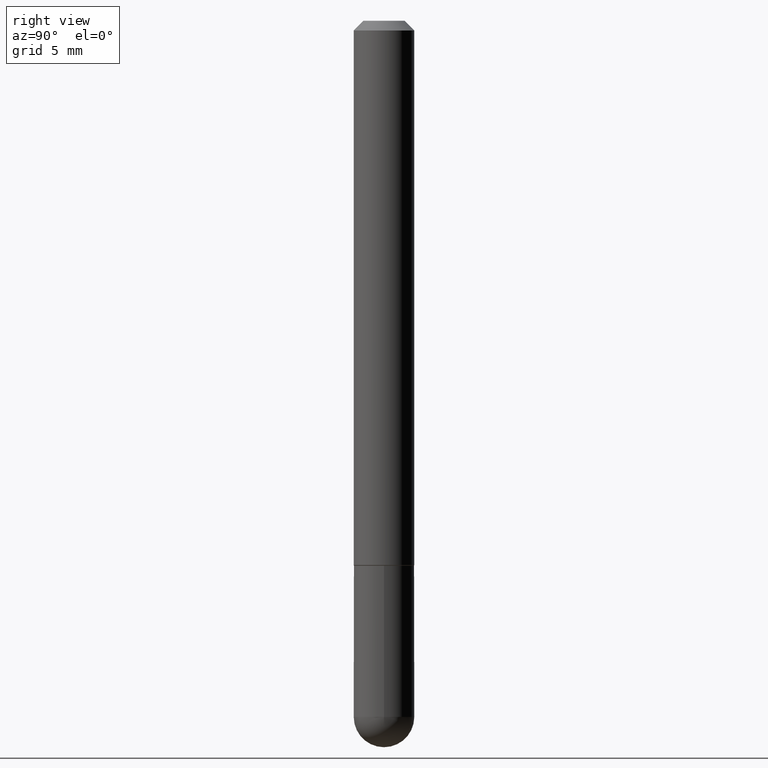
[diagram: clean part render]
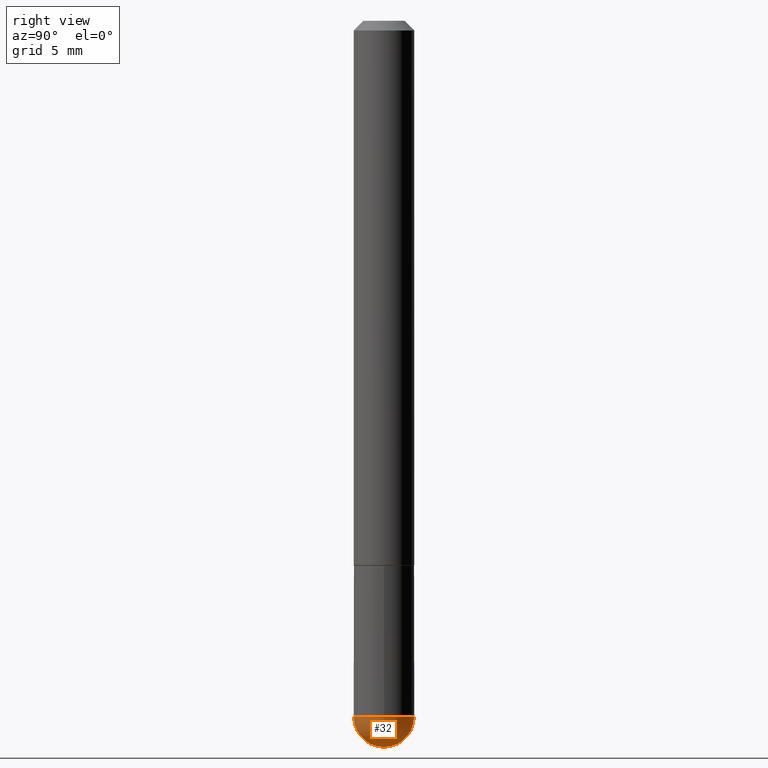
[diagram: same view with one face highlighted and labeled with its STEP entity id]
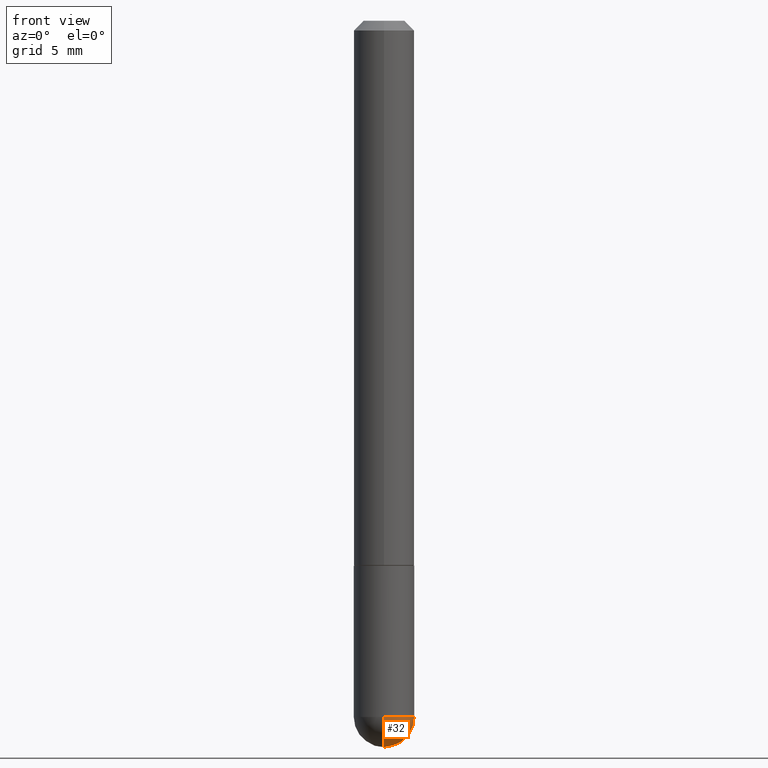
[diagram: same view with one face highlighted and labeled with its STEP entity id]
A machine part, right view. The second image highlights one B-rep face of the part: STEP entity #32.
A second angle (front view) of the same face is appended — the face is thin or edge-on in the first view.
In plain terms, the highlighted spherical surface has radius 1.5875 mm.
Its self-contained STEP definition (entity closure, byte-faithful):
#32 = ADVANCED_FACE ( 'NONE', ( #275 ), #216, .T. ) ;
#40 = DIRECTION ( 'NONE',  ( 1.000000000000000000, -6.982962677686268288E-15, 0.000000000000000000 ) ) ;
#45 = DIRECTION ( 'NONE',  ( 1.000000000000000000, -6.982962677686268288E-15, 0.000000000000000000 ) ) ;
#47 = AXIS2_PLACEMENT_3D ( 'NONE', #356, #202, #40 ) ;
#55 = CARTESIAN_POINT ( 'NONE',  ( 3.184241630977247611E-29, -5.493186792727071849E-15, -1.437500000000000000 ) ) ;
#66 = CIRCLE ( 'NONE', #380, 0.06250000000000018041 ) ;
#67 = EDGE_CURVE ( 'NONE', #250, #103, #66, .T. ) ;
#83 = EDGE_CURVE ( 'NONE', #250, #101, #391, .T. ) ;
#101 = VERTEX_POINT ( 'NONE', #135 ) ;
#103 = VERTEX_POINT ( 'NONE', #205 ) ;
#106 = CIRCLE ( 'NONE', #164, 0.06249999999999995143 ) ;
#121 = EDGE_LOOP ( 'NONE', ( #239, #299, #322, #363 ) ) ;
#135 = CARTESIAN_POINT ( 'NONE',  ( 4.364351673554256397E-16, 0.06249999999999480971, -1.437500000000000444 ) ) ;
#136 = EDGE_CURVE ( 'NONE', #103, #394, #155, .T. ) ;
#155 = CIRCLE ( 'NONE', #47, 0.06249999999999995143 ) ;
#160 = CARTESIAN_POINT ( 'NONE',  ( 0.06249999999999995143, -4.909895632748172453E-15, -1.437500000000000222 ) ) ;
#164 = AXIS2_PLACEMENT_3D ( 'NONE', #183, #331, #45 ) ;
#167 = AXIS2_PLACEMENT_3D ( 'NONE', #213, #179, #328 ) ;
#179 = DIRECTION ( 'NONE',  ( 1.000000000000000000, -6.982962677686265922E-15, 4.883557194083112340E-29 ) ) ;
#183 = CARTESIAN_POINT ( 'NONE',  ( 3.515361408891134418E-29, -5.019004424587023131E-15, -1.437500000000000222 ) ) ;
#202 = DIRECTION ( 'NONE',  ( -2.445468806185136597E-29, 3.491481338843145583E-15, 1.000000000000000000 ) ) ;
#205 = CARTESIAN_POINT ( 'NONE',  ( -4.440892098500294840E-16, -0.06250000000000532907, -1.437500000000000000 ) ) ;
#209 = CARTESIAN_POINT ( 'NONE',  ( 3.339755826017505008E-29, -5.707577355157432999E-15, -1.500000000000000222 ) ) ;
#213 = CARTESIAN_POINT ( 'NONE',  ( 3.184241630977247611E-29, -5.493186792727071849E-15, -1.437500000000000000 ) ) ;
#216 = SPHERICAL_SURFACE ( 'NONE', #312, 0.06250000000000018041 ) ;
#232 = DIRECTION ( 'NONE',  ( -7.105427357601001859E-15, -1.000000000000000000, 0.000000000000000000 ) ) ;
#239 = ORIENTED_EDGE ( 'NONE', *, *, #67, .F. ) ;
#250 = VERTEX_POINT ( 'NONE', #209 ) ;
#275 = FACE_OUTER_BOUND ( 'NONE', #121, .T. ) ;
#290 = EDGE_CURVE ( 'NONE', #394, #101, #106, .T. ) ;
#297 = CARTESIAN_POINT ( 'NONE',  ( 3.184241630977247611E-29, -5.493186792727071849E-15, -1.437500000000000000 ) ) ;
#299 = ORIENTED_EDGE ( 'NONE', *, *, #83, .T. ) ;
#312 = AXIS2_PLACEMENT_3D ( 'NONE', #55, #341, #404 ) ;
#322 = ORIENTED_EDGE ( 'NONE', *, *, #290, .F. ) ;
#328 = DIRECTION ( 'NONE',  ( 6.982962677686266711E-15, 1.000000000000000000, 0.000000000000000000 ) ) ;
#331 = DIRECTION ( 'NONE',  ( -2.445468806185136597E-29, 3.491481338843145583E-15, 1.000000000000000000 ) ) ;
#341 = DIRECTION ( 'NONE',  ( -1.000000000000000000, 6.982962677686265922E-15, -4.883557194083112340E-29 ) ) ;
#356 = CARTESIAN_POINT ( 'NONE',  ( 3.515361408891134418E-29, -5.019004424587023131E-15, -1.437500000000000222 ) ) ;
#363 = ORIENTED_EDGE ( 'NONE', *, *, #136, .F. ) ;
#380 = AXIS2_PLACEMENT_3D ( 'NONE', #297, #385, #232 ) ;
#385 = DIRECTION ( 'NONE',  ( -1.000000000000000000, 7.105427357601001070E-15, -4.926315508542082329E-29 ) ) ;
#391 = CIRCLE ( 'NONE', #167, 0.06250000000000018041 ) ;
#394 = VERTEX_POINT ( 'NONE', #160 ) ;
#404 = DIRECTION ( 'NONE',  ( 6.982962677686265922E-15, 1.000000000000000000, -4.370956789862807739E-15 ) ) ;